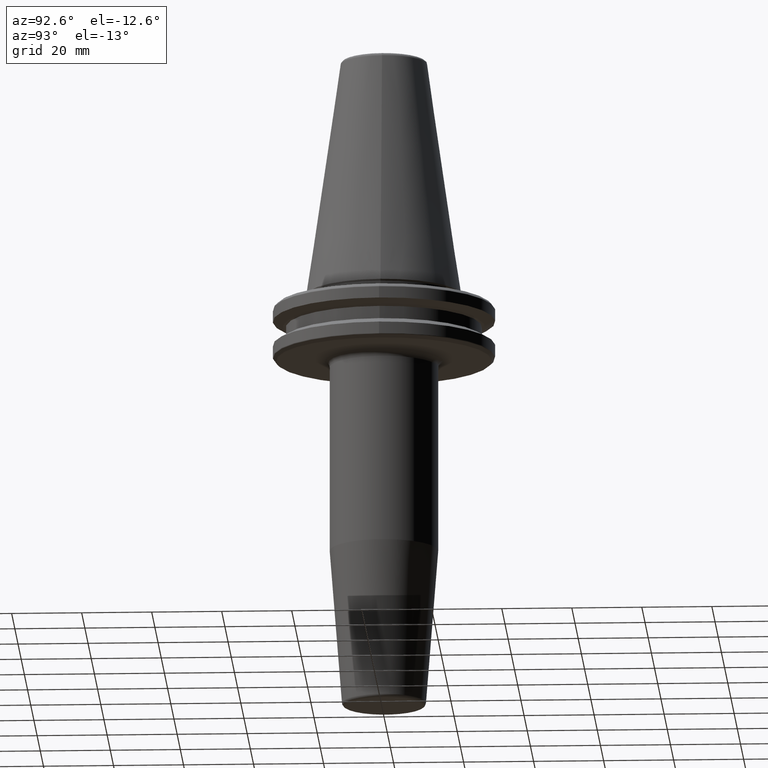
[diagram: clean part render]
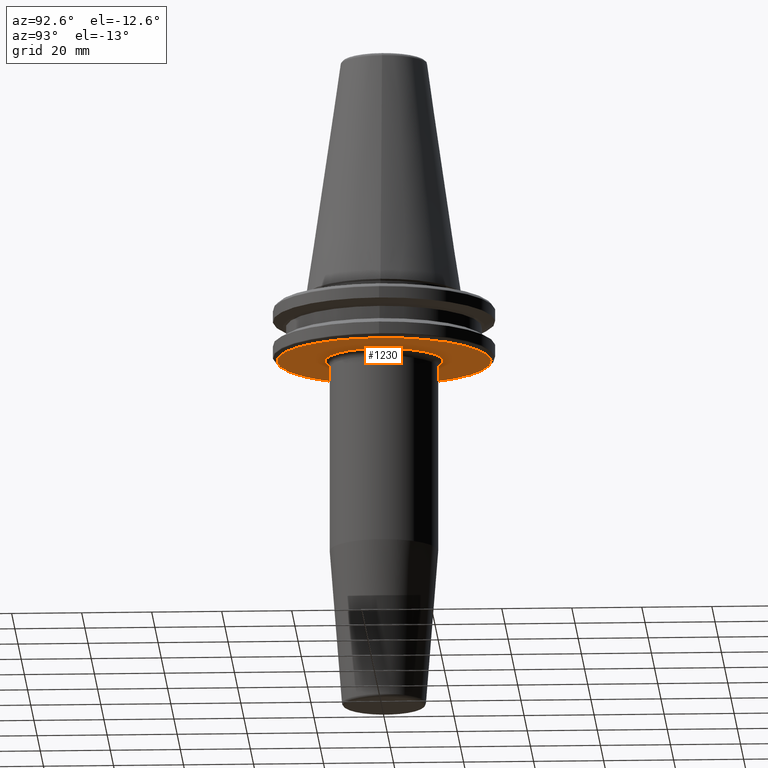
[diagram: same view with one face highlighted and labeled with its STEP entity id]
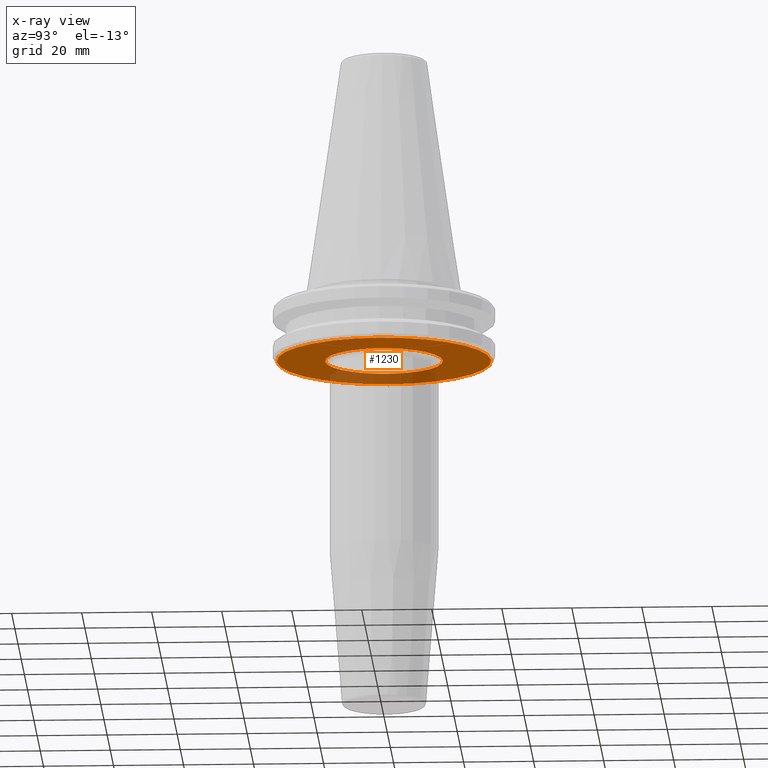
[diagram: x-ray of the same camera — body ghosted, the highlighted face saturated]
A machine part, auxiliary view. The second image highlights one B-rep face of the part: STEP entity #1230.
The next image is the same camera in x-ray: the body ghosted, the highlighted face saturated — about 21% of this face is hidden behind the body in this view.
In plain terms, the highlighted planar face has unit normal (0, 0, -1).
Its self-contained STEP definition (entity closure, byte-faithful):
#12 = CARTESIAN_POINT ( 'NONE',  ( 0.0000000000000000000, 0.0000000000000000000, -19.10000000000000500 ) ) ;
#63 = EDGE_CURVE ( 'NONE', #230, #1239, #155, .T. ) ;
#72 = CARTESIAN_POINT ( 'NONE',  ( -30.58431457505076500, 3.762817415969875600E-015, -19.10000000000000500 ) ) ;
#76 = AXIS2_PLACEMENT_3D ( 'NONE', #1119, #533, #145 ) ;
#111 = DIRECTION ( 'NONE',  ( 1.000000000000000000, 0.0000000000000000000, 0.0000000000000000000 ) ) ;
#121 = DIRECTION ( 'NONE',  ( 0.0000000000000000000, 0.0000000000000000000, -1.000000000000000000 ) ) ;
#145 = DIRECTION ( 'NONE',  ( 1.000000000000000000, 0.0000000000000000000, 0.0000000000000000000 ) ) ;
#155 = CIRCLE ( 'NONE', #76, 16.82553478956935000 ) ;
#173 = ORIENTED_EDGE ( 'NONE', *, *, #391, .F. ) ;
#224 = CARTESIAN_POINT ( 'NONE',  ( 30.58431457505076500, 0.0000000000000000000, -19.10000000000000500 ) ) ;
#230 = VERTEX_POINT ( 'NONE', #1046 ) ;
#267 = VERTEX_POINT ( 'NONE', #72 ) ;
#290 = AXIS2_PLACEMENT_3D ( 'NONE', #328, #1092, #889 ) ;
#295 = EDGE_CURVE ( 'NONE', #1239, #230, #617, .T. ) ;
#328 = CARTESIAN_POINT ( 'NONE',  ( 0.0000000000000000000, 0.0000000000000000000, -19.10000000000000500 ) ) ;
#345 = EDGE_LOOP ( 'NONE', ( #620, #577 ) ) ;
#357 = FACE_BOUND ( 'NONE', #345, .T. ) ;
#358 = EDGE_LOOP ( 'NONE', ( #173, #1132 ) ) ;
#365 = VERTEX_POINT ( 'NONE', #224 ) ;
#391 = EDGE_CURVE ( 'NONE', #365, #267, #1215, .T. ) ;
#423 = AXIS2_PLACEMENT_3D ( 'NONE', #1184, #121, #798 ) ;
#424 = AXIS2_PLACEMENT_3D ( 'NONE', #688, #872, #1253 ) ;
#533 = DIRECTION ( 'NONE',  ( 0.0000000000000000000, 0.0000000000000000000, -1.000000000000000000 ) ) ;
#577 = ORIENTED_EDGE ( 'NONE', *, *, #295, .F. ) ;
#601 = FACE_OUTER_BOUND ( 'NONE', #358, .T. ) ;
#617 = CIRCLE ( 'NONE', #424, 16.82553478956935000 ) ;
#620 = ORIENTED_EDGE ( 'NONE', *, *, #63, .F. ) ;
#672 = DIRECTION ( 'NONE',  ( -0.0000000000000000000, -0.0000000000000000000, 1.000000000000000000 ) ) ;
#688 = CARTESIAN_POINT ( 'NONE',  ( 0.0000000000000000000, -1.734723475976807100E-014, -19.10000000000000500 ) ) ;
#798 = DIRECTION ( 'NONE',  ( -1.000000000000000000, 0.0000000000000000000, -0.0000000000000000000 ) ) ;
#872 = DIRECTION ( 'NONE',  ( 0.0000000000000000000, 0.0000000000000000000, -1.000000000000000000 ) ) ;
#889 = DIRECTION ( 'NONE',  ( 1.000000000000000000, 0.0000000000000000000, 0.0000000000000000000 ) ) ;
#1001 = CARTESIAN_POINT ( 'NONE',  ( 2.060533732398854300E-015, -16.82553478956937100, -19.10000000000000500 ) ) ;
#1012 = AXIS2_PLACEMENT_3D ( 'NONE', #12, #672, #111 ) ;
#1046 = CARTESIAN_POINT ( 'NONE',  ( 0.0000000000000000000, 16.82553478956932800, -19.10000000000000500 ) ) ;
#1092 = DIRECTION ( 'NONE',  ( -0.0000000000000000000, -0.0000000000000000000, 1.000000000000000000 ) ) ;
#1119 = CARTESIAN_POINT ( 'NONE',  ( 0.0000000000000000000, -1.734723475976807100E-014, -19.10000000000000500 ) ) ;
#1132 = ORIENTED_EDGE ( 'NONE', *, *, #1146, .F. ) ;
#1146 = EDGE_CURVE ( 'NONE', #267, #365, #1154, .T. ) ;
#1154 = CIRCLE ( 'NONE', #1012, 30.58431457505076500 ) ;
#1179 = PLANE ( 'NONE',  #423 ) ;
#1184 = CARTESIAN_POINT ( 'NONE',  ( 0.0000000000000000000, 2.166680460328873200E-015, -19.10000000000000500 ) ) ;
#1215 = CIRCLE ( 'NONE', #290, 30.58431457505076500 ) ;
#1230 = ADVANCED_FACE ( 'NONE', ( #357, #601 ), #1179, .T. ) ;
#1239 = VERTEX_POINT ( 'NONE', #1001 ) ;
#1253 = DIRECTION ( 'NONE',  ( 1.000000000000000000, 0.0000000000000000000, 0.0000000000000000000 ) ) ;